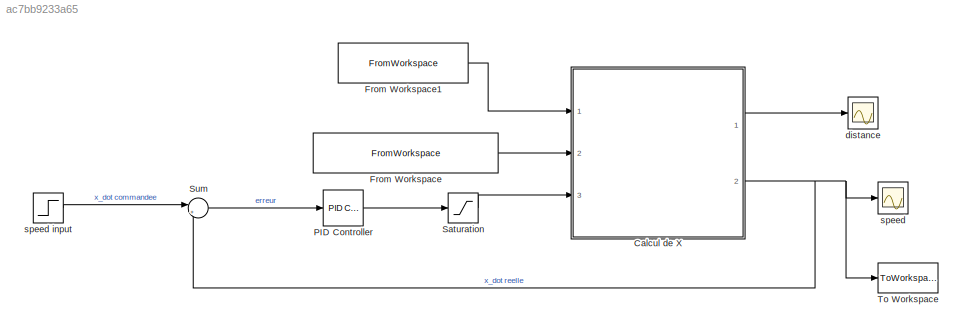
MODEL slx_ac7bb9233a65
KIND model
CONFIG AbsTol = auto
CONFIG FixedStep = auto
CONFIG MaxStep = auto
CONFIG MinStep = auto
CONFIG RelTol = 1e-3
CONFIG SampleTimeConstraint = Unconstrained
CONFIG Solver = ode45
CONFIG SolverMode = Auto
CONFIG SolverName = ode45
CONFIG StartTime = 0.0
CONFIG StopTime = 10.0
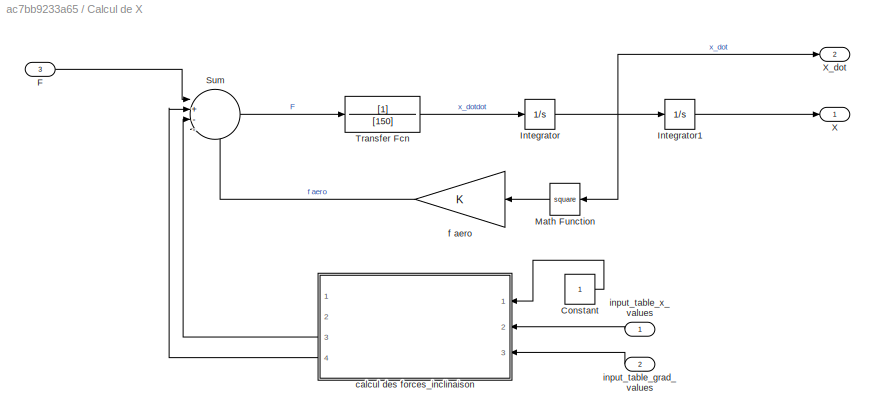
BLOCK [SubSystem] Calcul de X
  Ports = [3, 2]
  RequestExecContextInheritance = off
BLOCK [Constant] Calcul de X/Constant
BLOCK [Inport] Calcul de X/F
  IconDisplay = Port number
  Port = 3
BLOCK [Integrator] Calcul de X/Integrator
  Ports = [1, 1]
BLOCK [Integrator] Calcul de X/Integrator1
  Ports = [1, 1]
BLOCK [Math] Calcul de X/Math Function
  Operator = square
  Ports = [1, 1]
BLOCK [Sum] Calcul de X/Sum
  IconShape = round
  InputSameDT = off
  Inputs = |+---
  OutDataTypeStr = Inherit: Inherit via internal rule
  Ports = [4, 1]
  SaturateOnIntegerOverflow = off
BLOCK [TransferFcn] Calcul de X/Transfer Fcn
  Denominator = [150]
BLOCK [Outport] Calcul de X/X
  IconDisplay = Port number
BLOCK [Outport] Calcul de X/X_dot
  IconDisplay = Port number
  Port = 2
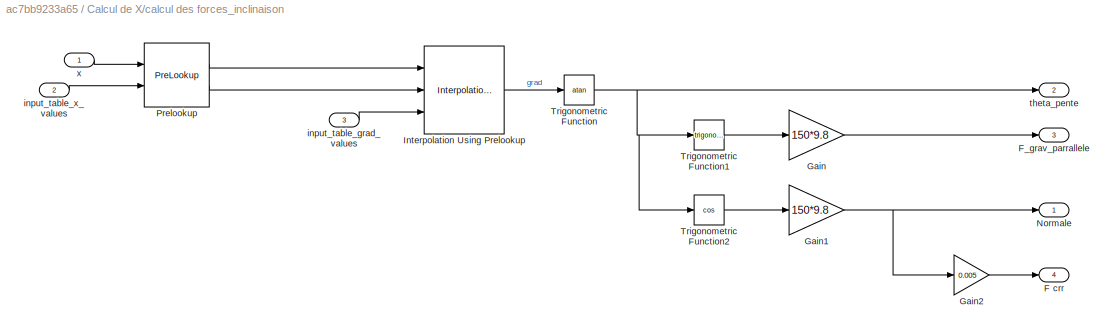
BLOCK [SubSystem] Calcul de X/calcul des forces_inclinaison
  Ports = [3, 4]
  RequestExecContextInheritance = off
BLOCK [Outport] Calcul de X/calcul des forces_inclinaison/F crr
  IconDisplay = Port number
  Port = 4
BLOCK [Outport] Calcul de X/calcul des forces_inclinaison/F_grav_parrallele
  IconDisplay = Port number
  Port = 3
BLOCK [Gain] Calcul de X/calcul des forces_inclinaison/Gain
  Gain = 150*9.8
  OutDataTypeStr = Inherit: Inherit via internal rule
  ParamDataTypeStr = Inherit: Inherit via internal rule
  SaturateOnIntegerOverflow = off
BLOCK [Gain] Calcul de X/calcul des forces_inclinaison/Gain1
  Gain = 150*9.8
  OutDataTypeStr = Inherit: Inherit via internal rule
  ParamDataTypeStr = Inherit: Inherit via internal rule
  SaturateOnIntegerOverflow = off
BLOCK [Gain] Calcul de X/calcul des forces_inclinaison/Gain2
  Gain = 0.005
  OutDataTypeStr = Inherit: Inherit via internal rule
  ParamDataTypeStr = Inherit: Inherit via internal rule
  SaturateOnIntegerOverflow = off
BLOCK [Interpolation_n-D] Calcul de X/calcul des forces_inclinaison/Interpolation Using Prelookup
  InputPortMap = u0,u1,p2
  IntermediateResultsDataTypeStr = Inherit: Inherit via internal rule
  InternalRulePriority = Speed
  NumberOfTableDimensions = 1
  Ports = [3, 1]
  TableSource = Input port
BLOCK [Outport] Calcul de X/calcul des forces_inclinaison/Normale
  IconDisplay = Port number
BLOCK [PreLookup] Calcul de X/calcul des forces_inclinaison/Prelookup
  BreakpointsData = [10:10:110]
  BreakpointsDataSource = Input port
  ExtrapMethod = Linear
  InputPortMap = u0,p1
  Ports = [2, 2]
BLOCK [Trigonometry] Calcul de X/calcul des forces_inclinaison/Trigonometric Function
  Operator = atan
  Ports = [1, 1]
BLOCK [Trigonometry] Calcul de X/calcul des forces_inclinaison/Trigonometric Function1
  Ports = [1, 1]
BLOCK [Trigonometry] Calcul de X/calcul des forces_inclinaison/Trigonometric Function2
  Operator = cos
  Ports = [1, 1]
BLOCK [Inport] Calcul de X/calcul des forces_inclinaison/input_table_grad_values
  IconDisplay = Port number
  Port = 3
BLOCK [Inport] Calcul de X/calcul des forces_inclinaison/input_table_x_values
  IconDisplay = Port number
  Port = 2
BLOCK [Outport] Calcul de X/calcul des forces_inclinaison/theta_pente
  IconDisplay = Port number
  Port = 2
BLOCK [Inport] Calcul de X/calcul des forces_inclinaison/x
  IconDisplay = Port number
BLOCK [Gain] Calcul de X/f aero
  OutDataTypeStr = Inherit: Inherit via internal rule
  ParamDataTypeStr = Inherit: Inherit via internal rule
  SaturateOnIntegerOverflow = off
BLOCK [Inport] Calcul de X/input_table_grad_values
  IconDisplay = Port number
  Port = 2
BLOCK [Inport] Calcul de X/input_table_x_values
  IconDisplay = Port number
BLOCK [FromWorkspace] From Workspace
  SampleTime = 0
  VariableName = input_table_grad_values
  ZeroCross = on
BLOCK [FromWorkspace] From Workspace1
  SampleTime = 0
  VariableName = input_table_x_values
  ZeroCross = on
BLOCK [Reference] PID Controller  REF=simulink/Continuous/PID Controller
  AntiWindupMode = none
  Controller = P
  ControllerParametersSource = internal
  D = 0
  DGainOutDataTypeStr = Inherit: Inherit via internal rule
  DOutDataTypeStr = Inherit: Inherit via internal rule
  DOutMax = []
  DOutMin = []
  DParamDataTypeStr = Inherit: Inherit via internal rule
  DParamMax = []
  DParamMin = []
  DProdOutDataTypeStr = Inherit: Inherit via internal rule
  DifferentiatorICPrevScaledInput = 0
  DifferentiatorOutDataTypeStr = Inherit: Inherit via internal rule
  DifferentiatorOutMax = []
  DifferentiatorOutMin = []
  ExternalReset = none
  FilterContinuousStateAttributes = ''
  FilterMethod = Forward Euler
  FilterOutDataTypeStr = Inherit: Inherit via internal rule
  FilterOutMax = []
  FilterOutMin = []
  FilterRTWStateStorageClass = Auto
  FilterStateMustResolveToSignalObject = off
  Form = Parallel
  I = 0
  IGainOutDataTypeStr = Inherit: Inherit via internal rule
  IOutDataTypeStr = Inherit: Inherit via internal rule
  IOutMax = []
  IOutMin = []
  IParamDataTypeStr = Inherit: Inherit via internal rule
  IParamMax = []
  IParamMin = []
  IProdOutDataTypeStr = Inherit: Inherit via internal rule
  IgnoreLimit = off
  InitialConditionForFilter = 0
  InitialConditionForIntegrator = 0
  InitialConditionSource = internal
  IntegratorContinuousStateAttributes = ''
  IntegratorMethod = Forward Euler
  IntegratorOutDataTypeStr = Inherit: Inherit via internal rule
  IntegratorOutMax = []
  IntegratorOutMin = []
  IntegratorRTWStateStorageClass = Auto
  IntegratorStateMustResolveToSignalObject = off
  Kb = 1
  KbOutDataTypeStr = Inherit: Inherit via internal rule
  KbOutMax = []
  KbOutMin = []
  KbParamDataTypeStr = Inherit: Inherit via internal rule
  KbParamMax = []
  KbParamMin = []
  Kt = 1
  KtOutDataTypeStr = Inherit: Inherit via internal rule
  KtOutMax = []
  KtOutMin = []
  KtParamDataTypeStr = Inherit: Inherit via internal rule
  KtParamMax = []
  KtParamMin = []
  LimitOutput = off
  LinearizeAsGain = on
  LockScale = off
  LowerSaturationLimit = -inf
  N = 100
  NGainOutDataTypeStr = Inherit: Inherit via internal rule
  NOutDataTypeStr = Inherit: Inherit via internal rule
  NOutMax = []
  NOutMin = []
  NParamDataTypeStr = Inherit: Inherit via internal rule
  NParamMax = []
  NParamMin = []
  NProdOutDataTypeStr = Inherit: Inherit via internal rule
  P = 1
  PGainOutDataTypeStr = Inherit: Inherit via internal rule
  POutDataTypeStr = Inherit: Inherit via internal rule
  POutMax = []
  POutMin = []
  PParamDataTypeStr = Inherit: Inherit via internal rule
  PParamMax = []
  PParamMin = []
  PProdOutDataTypeStr = Inherit: Inherit via internal rule
  Ports = [1, 1]
  RndMeth = Floor
  SampleTime = -1
  SaturateOnIntegerOverflow = off
  SaturationOutDataTypeStr = Inherit: Same as input
  SaturationOutMax = []
  SaturationOutMin = []
  SourceBlock = simulink/Continuous/PID Controller
  SourceType = PID 1dof
  SumAccumDataTypeStr = Inherit: Inherit via internal rule
  SumDAccumDataTypeStr = Inherit: Inherit via internal rule
  SumDOutDataTypeStr = Inherit: Inherit via internal rule
  SumDOutMax = []
  SumDOutMin = []
  SumI1AccumDataTypeStr = Inherit: Inherit via internal rule
  SumI1OutDataTypeStr = Inherit: Inherit via internal rule
  SumI1OutMax = []
  SumI1OutMin = []
  SumI2AccumDataTypeStr = Inherit: Inherit via internal rule
  SumI2OutDataTypeStr = Inherit: Inherit via internal rule
  SumI2OutMax = []
  SumI2OutMin = []
  SumI3AccumDataTypeStr = Inherit: Inherit via internal rule
  SumI3OutDataTypeStr = Inherit: Inherit via internal rule
  SumI3OutMax = []
  SumI3OutMin = []
  SumOutDataTypeStr = Inherit: Inherit via internal rule
  SumOutMax = []
  SumOutMin = []
  TimeDomain = Continuous-time
  TrackingMode = off
  UpperSaturationLimit = inf
  UseFilter = on
  ZeroCross = on
BLOCK [Saturate] Saturation
  InputPortMap = u0
  LowerLimit = -150
  Ports = [1, 1]
  UpperLimit = 150
BLOCK [Sum] Sum
  IconShape = round
  InputSameDT = off
  Inputs = |+-
  OutDataTypeStr = Inherit: Inherit via internal rule
  Ports = [2, 1]
  SaturateOnIntegerOverflow = off
BLOCK [ToWorkspace] To Workspace
  FixptAsFi = on
  MaxDataPoints = inf
  Ports = [1]
  SampleTime = -1
  Save2DSignal = 2-D array (concatenate along first dimension)
  VariableName = simout
BLOCK [Scope] distance
  Floating = off
  NumInputPorts = 1
  Ports = [1]
BLOCK [Scope] speed
  Floating = off
  NumInputPorts = 1
  Ports = [1]
  SaveName = ScopeData1
BLOCK [Step] speed input
  After = 4.16
  SampleTime = 1
  Time = 0
LINE Calcul de X/Constant:1 -> Calcul de X/calcul des forces_inclinaison:1
LINE Calcul de X/F:1 -> Calcul de X/Sum:1
LINE Calcul de X/Integrator1:1 -> Calcul de X/X:1
NET Calcul de X/Integrator:1 -> Calcul de X/Integrator1:1, Calcul de X/Math Function:1, Calcul de X/X_dot:1
LINE Calcul de X/Math Function:1 -> Calcul de X/f aero:1
LINE Calcul de X/Sum:1 -> Calcul de X/Transfer Fcn:1
LINE Calcul de X/Transfer Fcn:1 -> Calcul de X/Integrator:1
NET Calcul de X/calcul des forces_inclinaison/Gain1:1 -> Calcul de X/calcul des forces_inclinaison/Gain2:1, Calcul de X/calcul des forces_inclinaison/Normale:1
LINE Calcul de X/calcul des forces_inclinaison/Gain2:1 -> Calcul de X/calcul des forces_inclinaison/F crr:1
LINE Calcul de X/calcul des forces_inclinaison/Gain:1 -> Calcul de X/calcul des forces_inclinaison/F_grav_parrallele:1
LINE Calcul de X/calcul des forces_inclinaison/Interpolation Using Prelookup:1 -> Calcul de X/calcul des forces_inclinaison/Trigonometric Function:1
LINE Calcul de X/calcul des forces_inclinaison/Prelookup:1 -> Calcul de X/calcul des forces_inclinaison/Interpolation Using Prelookup:1
LINE Calcul de X/calcul des forces_inclinaison/Prelookup:2 -> Calcul de X/calcul des forces_inclinaison/Interpolation Using Prelookup:2
LINE Calcul de X/calcul des forces_inclinaison/Trigonometric Function1:1 -> Calcul de X/calcul des forces_inclinaison/Gain:1
LINE Calcul de X/calcul des forces_inclinaison/Trigonometric Function2:1 -> Calcul de X/calcul des forces_inclinaison/Gain1:1
NET Calcul de X/calcul des forces_inclinaison/Trigonometric Function:1 -> Calcul de X/calcul des forces_inclinaison/Trigonometric Function1:1, Calcul de X/calcul des forces_inclinaison/Trigonometric Function2:1, Calcul de X/calcul des forces_inclinaison/theta_pente:1
LINE Calcul de X/calcul des forces_inclinaison/input_table_grad_values:1 -> Calcul de X/calcul des forces_inclinaison/Interpolation Using Prelookup:3
LINE Calcul de X/calcul des forces_inclinaison/input_table_x_values:1 -> Calcul de X/calcul des forces_inclinaison/Prelookup:2
LINE Calcul de X/calcul des forces_inclinaison/x:1 -> Calcul de X/calcul des forces_inclinaison/Prelookup:1
LINE Calcul de X/calcul des forces_inclinaison:3 -> Calcul de X/Sum:3
LINE Calcul de X/calcul des forces_inclinaison:4 -> Calcul de X/Sum:2
LINE Calcul de X/f aero:1 -> Calcul de X/Sum:4
LINE Calcul de X/input_table_grad_values:1 -> Calcul de X/calcul des forces_inclinaison:3
LINE Calcul de X/input_table_x_values:1 -> Calcul de X/calcul des forces_inclinaison:2
LINE Calcul de X:1 -> distance:1
NET Calcul de X:2 -> Sum:2, To Workspace:1, speed:1
LINE From Workspace1:1 -> Calcul de X:1
LINE From Workspace:1 -> Calcul de X:2
LINE PID Controller:1 -> Saturation:1
LINE Saturation:1 -> Calcul de X:3
LINE Sum:1 -> PID Controller:1
LINE speed input:1 -> Sum:1
note: NET lines group one-source signal fan-out (src -> all destinations, sorted); 1:1 wires keep LINE
